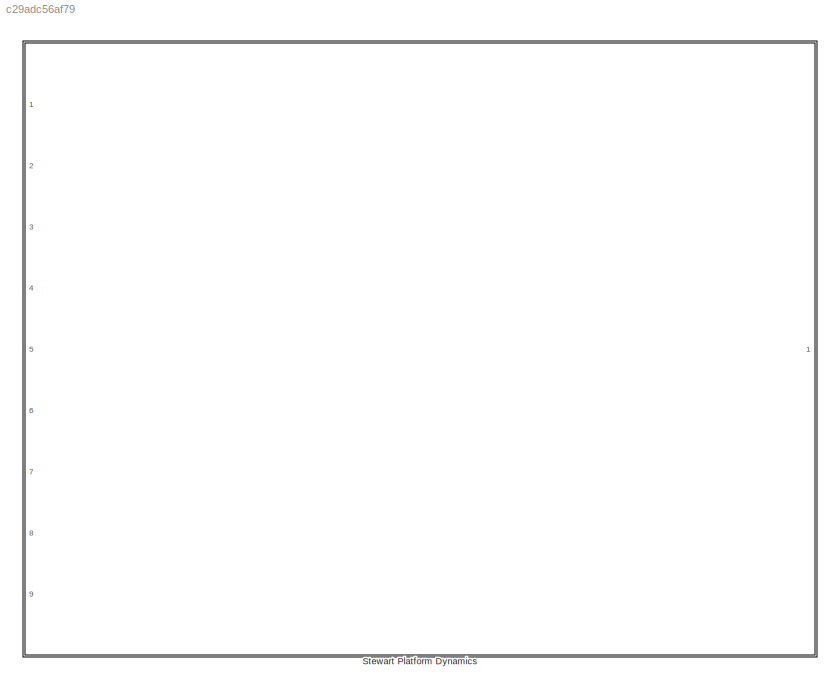
MODEL slx_c29adc56af79
KIND model
CONFIG AbsTol = auto
CONFIG FixedStep = auto
CONFIG MaxStep = auto
CONFIG MinStep = auto
CONFIG RelTol = 1e-3
CONFIG SampleTimeConstraint = Unconstrained
CONFIG Solver = ode45
CONFIG SolverMode = Auto
CONFIG SolverName = ode45
CONFIG StartTime = 0.0
CONFIG StopTime = 10.0
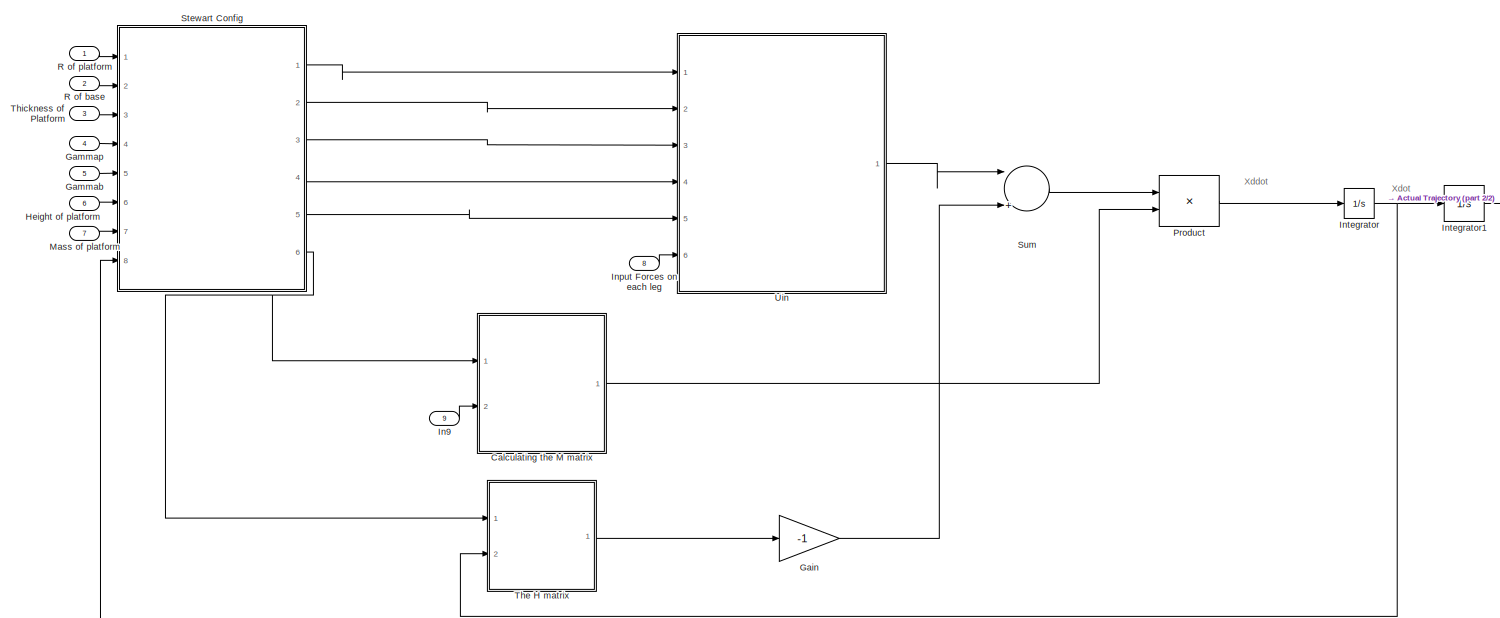
[diagram: Stewart Platform Dynamics - part 1/2, most of the canvas]
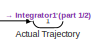
[diagram: Stewart Platform Dynamics - part 2/2, middle right region]
BLOCK [SubSystem] Stewart Platform Dynamics
  Ports = [9, 1]
  RequestExecContextInheritance = off
BLOCK [Outport] Stewart Platform Dynamics/Actual Trajectory
  IconDisplay = Port number
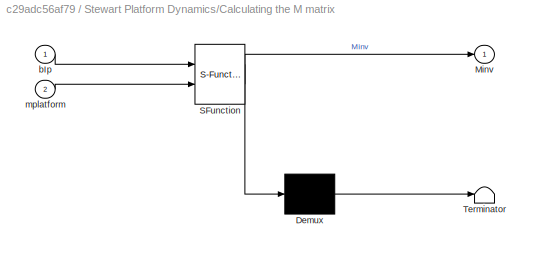
BLOCK [SubSystem] Stewart Platform Dynamics/Calculating the M  matrix
  ErrorFcn = Stateflow.Translate.translate
  PermitHierarchicalResolution = ExplicitOnly
  Ports = [2, 1]
  RequestExecContextInheritance = off
  SFBlockType = MATLAB Function
  TreatAsAtomicUnit = on
BLOCK [Demux] Stewart Platform Dynamics/Calculating the M  matrix/ Demux 
  Outputs = 1
  Ports = [1, 1]
BLOCK [S-Function] Stewart Platform Dynamics/Calculating the M  matrix/ SFunction 
  EnableBusSupport = on
  FunctionName = sf_sfun
  PortCounts = [2 2]
  Ports = [2, 2]
  Tag = Stateflow S-Function SimulinkTrial 4
BLOCK [Terminator] Stewart Platform Dynamics/Calculating the M  matrix/ Terminator 
BLOCK [Outport] Stewart Platform Dynamics/Calculating the M  matrix/Minv
  IconDisplay = Port number
BLOCK [Inport] Stewart Platform Dynamics/Calculating the M  matrix/bIp
  IconDisplay = Port number
BLOCK [Inport] Stewart Platform Dynamics/Calculating the M  matrix/mplatform
  IconDisplay = Port number
  Port = 2
BLOCK [Gain] Stewart Platform Dynamics/Gain
  Gain = -1
  OutDataTypeStr = Inherit: Inherit via internal rule
  ParamDataTypeStr = Inherit: Inherit via internal rule
  SaturateOnIntegerOverflow = off
BLOCK [Inport] Stewart Platform Dynamics/Gammab
  IconDisplay = Port number
  Port = 5
BLOCK [Inport] Stewart Platform Dynamics/Gammap
  IconDisplay = Port number
  Port = 4
BLOCK [Inport] Stewart Platform Dynamics/Height of platform 
  IconDisplay = Port number
  Port = 6
BLOCK [Inport] Stewart Platform Dynamics/In9
  IconDisplay = Port number
  Port = 9
BLOCK [Inport] Stewart Platform Dynamics/Input Forces on each leg
  IconDisplay = Port number
  Port = 8
BLOCK [Integrator] Stewart Platform Dynamics/Integrator
  Ports = [1, 1]
BLOCK [Integrator] Stewart Platform Dynamics/Integrator1
  Ports = [1, 1]
BLOCK [Inport] Stewart Platform Dynamics/Mass of platform
  IconDisplay = Port number
  Port = 7
BLOCK [Product] Stewart Platform Dynamics/Product
  InputSameDT = off
  Multiplication = Matrix(*)
  OutDataTypeStr = Inherit: Inherit via internal rule
  Ports = [2, 1]
  RndMeth = Floor
  SaturateOnIntegerOverflow = off
BLOCK [Inport] Stewart Platform Dynamics/R of base
  IconDisplay = Port number
  Port = 2
BLOCK [Inport] Stewart Platform Dynamics/R of platform
  IconDisplay = Port number
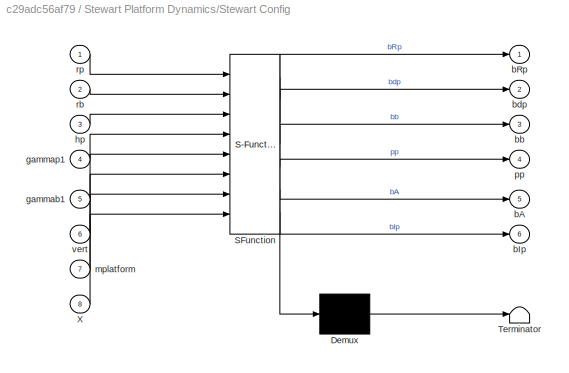
BLOCK [SubSystem] Stewart Platform Dynamics/Stewart Config
  ErrorFcn = Stateflow.Translate.translate
  PermitHierarchicalResolution = ExplicitOnly
  Ports = [8, 6]
  RequestExecContextInheritance = off
  SFBlockType = MATLAB Function
  TreatAsAtomicUnit = on
BLOCK [Demux] Stewart Platform Dynamics/Stewart Config/ Demux 
  Outputs = 1
  Ports = [1, 1]
BLOCK [S-Function] Stewart Platform Dynamics/Stewart Config/ SFunction 
  EnableBusSupport = on
  FunctionName = sf_sfun
  PortCounts = [8 7]
  Ports = [8, 7]
  Tag = Stateflow S-Function SimulinkTrial 1
BLOCK [Terminator] Stewart Platform Dynamics/Stewart Config/ Terminator 
BLOCK [Inport] Stewart Platform Dynamics/Stewart Config/X
  IconDisplay = Port number
  Port = 8
BLOCK [Outport] Stewart Platform Dynamics/Stewart Config/bA
  IconDisplay = Port number
  Port = 5
BLOCK [Outport] Stewart Platform Dynamics/Stewart Config/bIp
  IconDisplay = Port number
  Port = 6
BLOCK [Outport] Stewart Platform Dynamics/Stewart Config/bRp
  IconDisplay = Port number
BLOCK [Outport] Stewart Platform Dynamics/Stewart Config/bb
  IconDisplay = Port number
  Port = 3
BLOCK [Outport] Stewart Platform Dynamics/Stewart Config/bdp
  IconDisplay = Port number
  Port = 2
BLOCK [Inport] Stewart Platform Dynamics/Stewart Config/gammab1
  IconDisplay = Port number
  Port = 5
BLOCK [Inport] Stewart Platform Dynamics/Stewart Config/gammap1
  IconDisplay = Port number
  Port = 4
BLOCK [Inport] Stewart Platform Dynamics/Stewart Config/hp
  IconDisplay = Port number
  Port = 3
BLOCK [Inport] Stewart Platform Dynamics/Stewart Config/mplatform
  IconDisplay = Port number
  Port = 7
BLOCK [Outport] Stewart Platform Dynamics/Stewart Config/pp
  IconDisplay = Port number
  Port = 4
BLOCK [Inport] Stewart Platform Dynamics/Stewart Config/rb
  IconDisplay = Port number
  Port = 2
BLOCK [Inport] Stewart Platform Dynamics/Stewart Config/rp
  IconDisplay = Port number
BLOCK [Inport] Stewart Platform Dynamics/Stewart Config/vert
  IconDisplay = Port number
  Port = 6
BLOCK [Sum] Stewart Platform Dynamics/Sum
  InputSameDT = off
  Inputs = |++
  OutDataTypeStr = Inherit: Inherit via internal rule
  Ports = [2, 1]
  SaturateOnIntegerOverflow = off
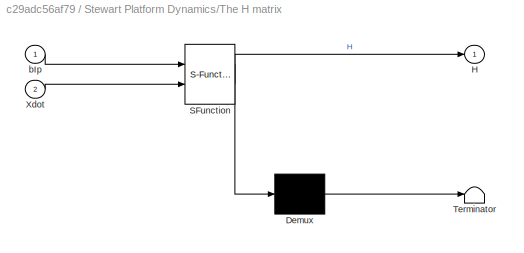
BLOCK [SubSystem] Stewart Platform Dynamics/The H matrix
  ErrorFcn = Stateflow.Translate.translate
  PermitHierarchicalResolution = ExplicitOnly
  Ports = [2, 1]
  RequestExecContextInheritance = off
  SFBlockType = MATLAB Function
  TreatAsAtomicUnit = on
BLOCK [Demux] Stewart Platform Dynamics/The H matrix/ Demux 
  Outputs = 1
  Ports = [1, 1]
BLOCK [S-Function] Stewart Platform Dynamics/The H matrix/ SFunction 
  EnableBusSupport = on
  FunctionName = sf_sfun
  PortCounts = [2 2]
  Ports = [2, 2]
  Tag = Stateflow S-Function SimulinkTrial 5
BLOCK [Terminator] Stewart Platform Dynamics/The H matrix/ Terminator 
BLOCK [Outport] Stewart Platform Dynamics/The H matrix/H
  IconDisplay = Port number
BLOCK [Inport] Stewart Platform Dynamics/The H matrix/Xdot
  IconDisplay = Port number
  Port = 2
BLOCK [Inport] Stewart Platform Dynamics/The H matrix/bIp
  IconDisplay = Port number
BLOCK [Inport] Stewart Platform Dynamics/Thickness of Platform
  IconDisplay = Port number
  Port = 3
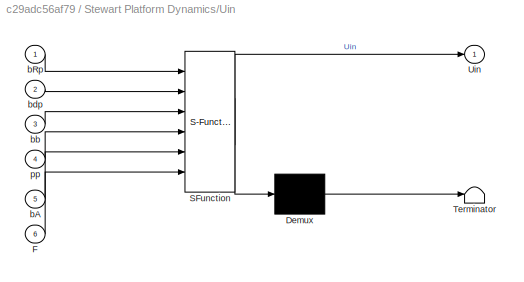
BLOCK [SubSystem] Stewart Platform Dynamics/Uin
  ErrorFcn = Stateflow.Translate.translate
  PermitHierarchicalResolution = ExplicitOnly
  Ports = [6, 1]
  RequestExecContextInheritance = off
  SFBlockType = MATLAB Function
  TreatAsAtomicUnit = on
BLOCK [Demux] Stewart Platform Dynamics/Uin/ Demux 
  Outputs = 1
  Ports = [1, 1]
BLOCK [S-Function] Stewart Platform Dynamics/Uin/ SFunction 
  EnableBusSupport = on
  FunctionName = sf_sfun
  PortCounts = [6 2]
  Ports = [6, 2]
  Tag = Stateflow S-Function SimulinkTrial 3
BLOCK [Terminator] Stewart Platform Dynamics/Uin/ Terminator 
BLOCK [Inport] Stewart Platform Dynamics/Uin/F
  IconDisplay = Port number
  Port = 6
BLOCK [Outport] Stewart Platform Dynamics/Uin/Uin
  IconDisplay = Port number
BLOCK [Inport] Stewart Platform Dynamics/Uin/bA
  IconDisplay = Port number
  Port = 5
BLOCK [Inport] Stewart Platform Dynamics/Uin/bRp
  IconDisplay = Port number
BLOCK [Inport] Stewart Platform Dynamics/Uin/bb
  IconDisplay = Port number
  Port = 3
BLOCK [Inport] Stewart Platform Dynamics/Uin/bdp
  IconDisplay = Port number
  Port = 2
BLOCK [Inport] Stewart Platform Dynamics/Uin/pp
  IconDisplay = Port number
  Port = 4
ANNOTATION Stewart Platform Dynamics: Xddot
ANNOTATION Stewart Platform Dynamics: Xdot
LINE Stewart Platform Dynamics/Calculating the M  matrix:1 -> Stewart Platform Dynamics/Product:2
LINE Stewart Platform Dynamics/Gain:1 -> Stewart Platform Dynamics/Sum:2
LINE Stewart Platform Dynamics/Gammab:1 -> Stewart Platform Dynamics/Stewart Config:5
LINE Stewart Platform Dynamics/Gammap:1 -> Stewart Platform Dynamics/Stewart Config:4
LINE Stewart Platform Dynamics/Height of platform :1 -> Stewart Platform Dynamics/Stewart Config:6
LINE Stewart Platform Dynamics/In9:1 -> Stewart Platform Dynamics/Calculating the M  matrix:2
LINE Stewart Platform Dynamics/Input Forces on each leg:1 -> Stewart Platform Dynamics/Uin:6
NET Stewart Platform Dynamics/Integrator1:1 -> Stewart Platform Dynamics/Actual Trajectory:1, Stewart Platform Dynamics/Stewart Config:8
NET Stewart Platform Dynamics/Integrator:1 -> Stewart Platform Dynamics/Integrator1:1, Stewart Platform Dynamics/The H matrix:2
LINE Stewart Platform Dynamics/Mass of platform:1 -> Stewart Platform Dynamics/Stewart Config:7
LINE Stewart Platform Dynamics/Product:1 -> Stewart Platform Dynamics/Integrator:1
LINE Stewart Platform Dynamics/R of base:1 -> Stewart Platform Dynamics/Stewart Config:2
LINE Stewart Platform Dynamics/R of platform:1 -> Stewart Platform Dynamics/Stewart Config:1
LINE Stewart Platform Dynamics/Stewart Config:1 -> Stewart Platform Dynamics/Uin:1
LINE Stewart Platform Dynamics/Stewart Config:2 -> Stewart Platform Dynamics/Uin:2
LINE Stewart Platform Dynamics/Stewart Config:3 -> Stewart Platform Dynamics/Uin:3
LINE Stewart Platform Dynamics/Stewart Config:4 -> Stewart Platform Dynamics/Uin:4
LINE Stewart Platform Dynamics/Stewart Config:5 -> Stewart Platform Dynamics/Uin:5
NET Stewart Platform Dynamics/Stewart Config:6 -> Stewart Platform Dynamics/Calculating the M  matrix:1, Stewart Platform Dynamics/The H matrix:1
LINE Stewart Platform Dynamics/Sum:1 -> Stewart Platform Dynamics/Product:1
LINE Stewart Platform Dynamics/The H matrix:1 -> Stewart Platform Dynamics/Gain:1
LINE Stewart Platform Dynamics/Thickness of Platform:1 -> Stewart Platform Dynamics/Stewart Config:3
LINE Stewart Platform Dynamics/Uin:1 -> Stewart Platform Dynamics/Sum:1
note: NET lines group one-source signal fan-out (src -> all destinations, sorted); 1:1 wires keep LINE
CHART Stewart Platform Dynamics/Stewart Config states=1 transitions=1
  STATE_LABEL 'eML_blk_kernel()'
  STATE_LABEL 'SCRIPT:\nfunction [bRp,bdp,bb,pp,bA,bIp] = fcn(rp,rb,hp,gammap1,gammab1,vert,mplatform,X)\n%#codegen\ngammap = [gammap1,120-gammapl, 120+gammap1, -120-gammap1,-120+gammap1,-gammap1];\ngammab = [gammab1,120-gammab1, 120+gammab1, -120-gammab1,-120+gammab1,-gammab1];\n\n %alphap = [0 , 120, 120, -120 , -120 , 0] ;  \n %betab = [60,60,180,180,-60,-60];\n \n \n % pIp = mplatform *[((rp^2)/4) , 0, 0; 0, ((rp*2)/4...<+1427ch>'
CHART Stewart Platform Dynamics/Uin states=1 transitions=1
  STATE_LABEL 'eML_blk_kernel()'
  STATE_LABEL "SCRIPT:\nfunction Uin = fcn(bRp,bdp,bb,pp,bA,F)\n%#codegen\n\n    G=[0,0,-g]';\n    Fvec=zeros(3,6);\n    %We are going to add g in vector form to the input force\n   \n    for j=1:6\n       Fvec(:,j)=F(j,a)*bA(:,j);\n    end\n    \n    \n   U=zeros(6,1);                                              %Combined effect of gravity and force on actuators\n     for j=1:6\n       U(j,1)= F(j,a)+dot(Fvec(:,j),G);\n     e...<+268ch>"
CHART Stewart Platform Dynamics/Calculating the M  matrix states=1 transitions=1
  STATE_LABEL 'eML_blk_kernel()'
  STATE_LABEL 'SCRIPT:\nfunction Minv = fcn(bIp,mplatform)\n%#codegen\n\nm=mplatform*(eye(3));\n\nz=zeros(3,3);\n\nM=[m,z;z,bIp];\nMinv=inv(M);\n'
CHART Stewart Platform Dynamics/The H matrix states=1 transitions=1
  STATE_LABEL 'eML_blk_kernel()'
  STATE_LABEL 'SCRIPT:\nfunction H = fcn(bIp,Xdot)\n%#codegen\nbWp = [Xdot(4,1) ; Xdot(5,1) ; Xdot(6,1)] ;\n\nbWpskew=[ 0 , -1*bWp(3,1) , bWp(2,1) ; \n         bWp(3,1) , 0 , -1*bWp(1,1)  ;\n         -1*bWp(2,1), bWp(1,1), 0 ];\n     \n     h= bWpskew*bIp;                             %WxI\n    H=[z,z;z,h];\n\n\n'
